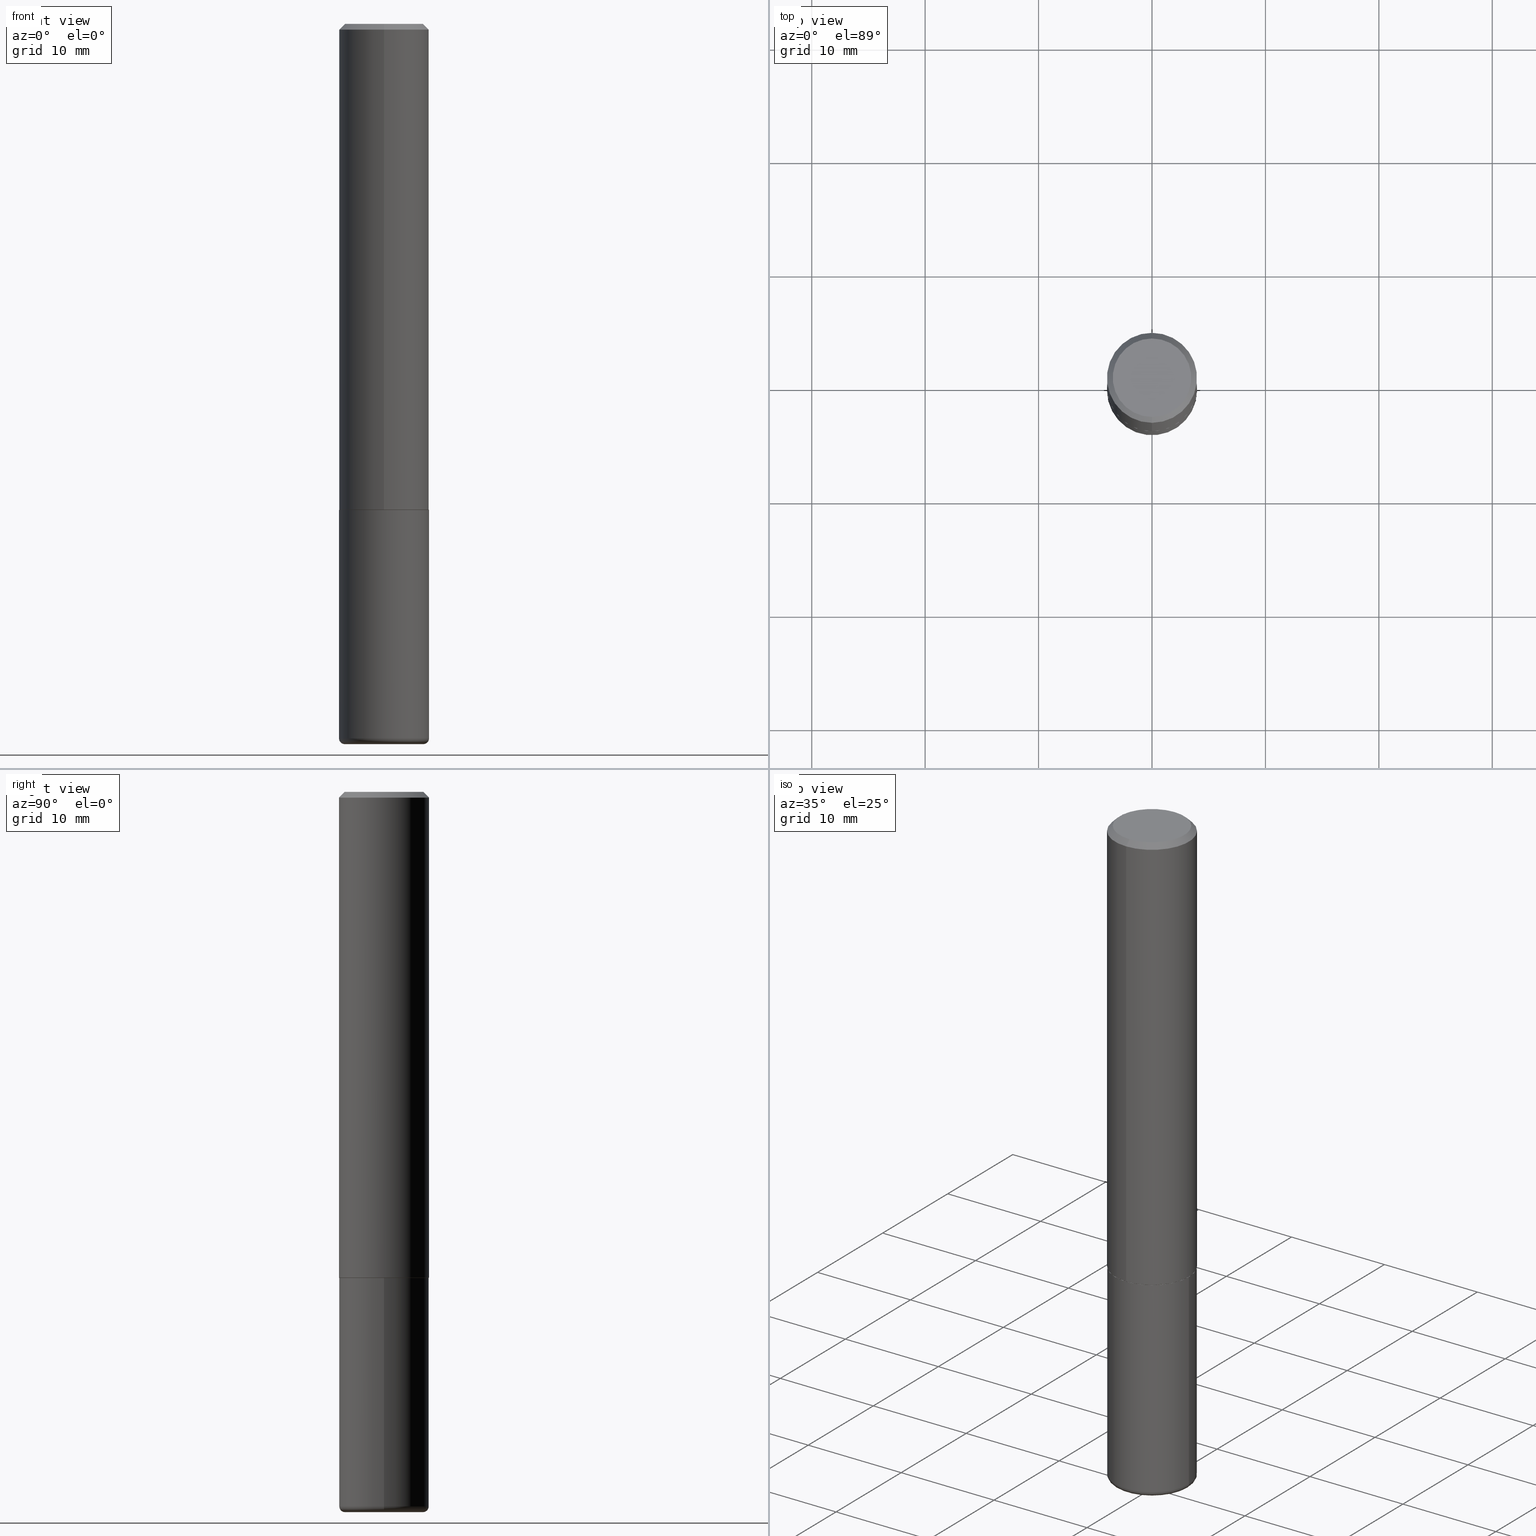
[diagram: canonical four-view strip — front | top / right | iso, engineering-drawing reading convention]
A machine part, canonical four-view strip (front | top / right | iso — engineering-drawing reading convention). The complete STEP part file that produces these views, byte-faithful:
ISO-10303-21;
HEADER;
FILE_DESCRIPTION (( 'STEP AP203' ),
    '1' );
FILE_NAME ('33348.STEP',
    '2024-03-01T13:23:41',
    ( '' ),
    ( '' ),
    'SwSTEP 2.0',
    'SolidWorks 2023',
    '' );
FILE_SCHEMA (( 'CONFIG_CONTROL_DESIGN' ));
ENDSEC;

DATA;
#1 = VERTEX_POINT ( 'NONE', #77 ) ;
#2 = DIRECTION ( 'NONE',  ( -2.445245379879280031E-29, 3.491801298029767650E-15, 1.000000000000000000 ) ) ;
#3 = CARTESIAN_POINT ( 'NONE',  ( 2.086446098065139374E-45, -2.979437259524717068E-31, -8.532665536283094915E-17 ) ) ;
#4 = ORIENTED_EDGE ( 'NONE', *, *, #380, .F. ) ;
#5 = EDGE_CURVE ( 'NONE', #334, #205, #336, .T. ) ;
#6 = COORDINATED_UNIVERSAL_TIME_OFFSET ( 5, 0, .BEHIND. ) ;
#7 = AXIS2_PLACEMENT_3D ( 'NONE', #246, #51, #118 ) ;
#8 = CALENDAR_DATE ( 2024, 1, 3 ) ;
#9 = CC_DESIGN_DATE_AND_TIME_ASSIGNMENT ( #54, #131, ( #63 ) ) ;
#10 =( NAMED_UNIT ( * ) SI_UNIT ( $, .STERADIAN. ) SOLID_ANGLE_UNIT ( ) );
#11 = ORIENTED_EDGE ( 'NONE', *, *, #135, .F. ) ;
#12 = EDGE_CURVE ( 'NONE', #139, #205, #24, .T. ) ;
#13 = DIRECTION ( 'NONE',  ( -2.445245379879280031E-29, 3.491801298029767650E-15, 1.000000000000000000 ) ) ;
#14 = VERTEX_POINT ( 'NONE', #233 ) ;
#15 = EDGE_CURVE ( 'NONE', #205, #14, #387, .T. ) ;
#16 = FACE_OUTER_BOUND ( 'NONE', #206, .T. ) ;
#17 = CIRCLE ( 'NONE', #412, 0.1562500000000000000 ) ;
#18 = CARTESIAN_POINT ( 'NONE',  ( 2.086446098065139374E-45, -2.979437259524717068E-31, -8.532665536283094915E-17 ) ) ;
#19 = VERTEX_POINT ( 'NONE', #76 ) ;
#20 = DIRECTION ( 'NONE',  ( -2.445468806185136597E-29, 3.491481338843145583E-15, 1.000000000000000000 ) ) ;
#21 = ORIENTED_EDGE ( 'NONE', *, *, #15, .T. ) ;
#22 = AXIS2_PLACEMENT_3D ( 'NONE', #187, #286, #191 ) ;
#23 = SHAPE_DEFINITION_REPRESENTATION ( #262, #157 ) ;
#24 = LINE ( 'NONE', #276, #351 ) ;
#25 = CLOSED_SHELL ( 'NONE', ( #410, #85, #66, #80, #151, #170, #295, #300 ) ) ;
#26 = DIRECTION ( 'NONE',  ( -2.445468806185136597E-29, 3.491481338843145583E-15, 1.000000000000000000 ) ) ;
#27 = FACE_OUTER_BOUND ( 'NONE', #186, .T. ) ;
#28 = APPROVAL ( #392, 'UNSPECIFIED' ) ;
#29 = EDGE_CURVE ( 'NONE', #221, #14, #71, .T. ) ;
#30 = PLANE ( 'NONE',  #366 ) ;
#31 = CONICAL_SURFACE ( 'NONE', #416, 0.1562500000000000278, 0.7853981633974472798 ) ;
#32 = DIRECTION ( 'NONE',  ( 1.000000000000000000, -6.982962677686273021E-15, 0.000000000000000000 ) ) ;
#33 = CC_DESIGN_APPROVAL ( #28, ( #123 ) ) ;
#34 = DATE_AND_TIME ( #8, #182 ) ;
#35 = ORIENTED_EDGE ( 'NONE', *, *, #224, .T. ) ;
#36 = ORIENTED_EDGE ( 'NONE', *, *, #172, .F. ) ;
#37 = CARTESIAN_POINT ( 'NONE',  ( 4.890490759758567699E-31, -6.983602596059547330E-17, -0.02000000000000003511 ) ) ;
#38 = ORIENTED_EDGE ( 'NONE', *, *, #12, .F. ) ;
#39 = DIRECTION ( 'NONE',  ( 2.438088387897960049E-29, -3.491481338843145188E-15, -1.000000000000000000 ) ) ;
#40 = CYLINDRICAL_SURFACE ( 'NONE', #208, 0.1562500000000001388 ) ;
#41 = CARTESIAN_POINT ( 'NONE',  ( -1.071952812151801412E-15, -0.1562500000000001110, -0.01999999999999948694 ) ) ;
#42 = EDGE_CURVE ( 'NONE', #14, #221, #47, .T. ) ;
#43 = COORDINATED_UNIVERSAL_TIME_OFFSET ( 5, 0, .BEHIND. ) ;
#44 = LINE ( 'NONE', #110, #398 ) ;
#45 = CIRCLE ( 'NONE', #55, 0.01999999999999988939 ) ;
#46 = CC_DESIGN_APPROVAL ( #231, ( #63 ) ) ;
#47 = CIRCLE ( 'NONE', #289, 0.1562500000000000278 ) ;
#48 = ORIENTED_EDGE ( 'NONE', *, *, #222, .F. ) ;
#49 = DIRECTION ( 'NONE',  ( -6.982962677686265922E-15, -1.000000000000000000, 3.519288880726909138E-15 ) ) ;
#50 = DIRECTION ( 'NONE',  ( 6.982962677686266711E-15, 1.000000000000000000, -3.496765431890256131E-15 ) ) ;
#51 = DIRECTION ( 'NONE',  ( -2.445468806185136597E-29, 3.491481338843145583E-15, 1.000000000000000000 ) ) ;
#52 = DIRECTION ( 'NONE',  ( 2.445245379879280031E-29, -3.491801298029767256E-15, -1.000000000000000000 ) ) ;
#53 = AXIS2_PLACEMENT_3D ( 'NONE', #180, #116, #324 ) ;
#54 = DATE_AND_TIME ( #92, #301 ) ;
#55 = AXIS2_PLACEMENT_3D ( 'NONE', #395, #119, #363 ) ;
#56 = CARTESIAN_POINT ( 'NONE',  ( 0.1562500000000000000, -1.091087918388479174E-15, 7.619026212181150377E-30 ) ) ;
#57 = CARTESIAN_POINT ( 'NONE',  ( 1.110223024625178431E-15, 0.1562499999999943379, -1.686000000000000831 ) ) ;
#58 = CARTESIAN_POINT ( 'NONE',  ( 4.125128955856346519E-29, -5.890668789776220031E-15, -1.687000000000000277 ) ) ;
#59 = PERSON ( 'UNSPECIFIED', 'UNSPECIFIED', 'UNSPECIFIED', ('UNSPECIFIED'), ('UNSPECIFIED'), ('UNSPECIFIED') ) ;
#60 = CARTESIAN_POINT ( 'NONE',  ( 6.064762639339139522E-29, -8.658873720331001644E-15, -2.480000000000000426 ) ) ;
#61 = PERSON_AND_ORGANIZATION ( #59, #138 ) ;
#62 = EDGE_LOOP ( 'NONE', ( #38, #94, #35, #185 ) ) ;
#63 = SECURITY_CLASSIFICATION ( '', '', #97 ) ;
#64 = ORIENTED_EDGE ( 'NONE', *, *, #108, .F. ) ;
#65 = CLOSED_SHELL ( 'NONE', ( #225, #319, #376, #385, #360, #73 ) ) ;
#66 = ADVANCED_FACE ( 'NONE', ( #256 ), #302, .T. ) ;
#67 = ORIENTED_EDGE ( 'NONE', *, *, #100, .F. ) ;
#68 = APPROVAL_ROLE ( '' ) ;
#69 = AXIS2_PLACEMENT_3D ( 'NONE', #369, #39, #335 ) ;
#70 = ORIENTED_EDGE ( 'NONE', *, *, #253, .T. ) ;
#71 = CIRCLE ( 'NONE', #183, 0.1562500000000000278 ) ;
#72 = CYLINDRICAL_SURFACE ( 'NONE', #95, 0.1562500000000000000 ) ;
#73 = ADVANCED_FACE ( 'NONE', ( #282 ), #406, .T. ) ;
#74 = DIRECTION ( 'NONE',  ( 0.000000000000000000, 0.000000000000000000, 1.000000000000000000 ) ) ;
#75 = EDGE_LOOP ( 'NONE', ( #328, #198, #306, #36 ) ) ;
#76 = CARTESIAN_POINT ( 'NONE',  ( 0.1562500000000000000, -6.981216937016868084E-15, -1.687000000000000277 ) ) ;
#77 = CARTESIAN_POINT ( 'NONE',  ( -1.003347832174086672E-15, -0.1362500000000001210, 3.904312714937253645E-16 ) ) ;
#78 = CARTESIAN_POINT ( 'NONE',  ( 0.000000000000000000, 0.000000000000000000, 0.000000000000000000 ) ) ;
#79 = VECTOR ( 'NONE', #177, 39.37007874015748143 ) ;
#80 = ADVANCED_FACE ( 'NONE', ( #248 ), #31, .T. ) ;
#81 =( NAMED_UNIT ( * ) PLANE_ANGLE_UNIT ( ) SI_UNIT ( $, .RADIAN. ) );
#82 = LINE ( 'NONE', #228, #79 ) ;
#83 = ORIENTED_EDGE ( 'NONE', *, *, #162, .F. ) ;
#84 = CC_DESIGN_SECURITY_CLASSIFICATION ( #63, ( #314 ) ) ;
#85 = ADVANCED_FACE ( 'NONE', ( #16 ), #378, .T. ) ;
#86 = ORIENTED_EDGE ( 'NONE', *, *, #172, .T. ) ;
#87 = DIRECTION ( 'NONE',  ( 2.438088387897960049E-29, -3.491481338843145188E-15, -1.000000000000000000 ) ) ;
#88 = VERTEX_POINT ( 'NONE', #273 ) ;
#89 = CARTESIAN_POINT ( 'NONE',  ( -0.1362500000000000100, -7.654619782670286835E-15, -2.500000000000000000 ) ) ;
#90 = FACE_OUTER_BOUND ( 'NONE', #281, .T. ) ;
#91 = CC_DESIGN_DATE_AND_TIME_ASSIGNMENT ( #327, #179, ( #123 ) ) ;
#92 = CALENDAR_DATE ( 2024, 1, 3 ) ;
#93 = CARTESIAN_POINT ( 'NONE',  ( -1.091087918388439336E-15, -0.1562500000000060785, -1.685999999999999721 ) ) ;
#94 = ORIENTED_EDGE ( 'NONE', *, *, #100, .T. ) ;
#95 = AXIS2_PLACEMENT_3D ( 'NONE', #104, #145, #245 ) ;
#96 = CIRCLE ( 'NONE', #105, 0.01999999999999988939 ) ;
#97 = SECURITY_CLASSIFICATION_LEVEL ( 'unclassified' ) ;
#98 = ORIENTED_EDGE ( 'NONE', *, *, #178, .F. ) ;
#99 = EDGE_LOOP ( 'NONE', ( #408, #234, #381, #107 ) ) ;
#100 = EDGE_CURVE ( 'NONE', #139, #201, #146, .T. ) ;
#101 = VERTEX_POINT ( 'NONE', #278 ) ;
#102 = CARTESIAN_POINT ( 'NONE',  ( -0.1562500000000000000, 1.110223024625156540E-15, -7.685836078523291160E-30 ) ) ;
#103 = PLANE ( 'NONE',  #298 ) ;
#104 = CARTESIAN_POINT ( 'NONE',  ( 0.000000000000000000, 0.000000000000000000, 0.000000000000000000 ) ) ;
#105 = AXIS2_PLACEMENT_3D ( 'NONE', #269, #232, #404 ) ;
#106 = APPROVAL_DATE_TIME ( #34, #28 ) ;
#107 = ORIENTED_EDGE ( 'NONE', *, *, #224, .F. ) ;
#108 = EDGE_CURVE ( 'NONE', #1, #221, #403, .T. ) ;
#109 = ORIENTED_EDGE ( 'NONE', *, *, #42, .T. ) ;
#110 = CARTESIAN_POINT ( 'NONE',  ( -1.084104955710751547E-15, -0.1552500000000059110, -1.686999999999999611 ) ) ;
#111 = AXIS2_PLACEMENT_3D ( 'NONE', #3, #296, #341 ) ;
#112 = FACE_OUTER_BOUND ( 'NONE', #159, .T. ) ;
#113 = ORIENTED_EDGE ( 'NONE', *, *, #108, .T. ) ;
#114 = CIRCLE ( 'NONE', #346, 0.1362500000000001210 ) ;
#115 = FACE_OUTER_BOUND ( 'NONE', #227, .T. ) ;
#116 = DIRECTION ( 'NONE',  ( -2.445245379879280031E-29, 3.491801298029767650E-15, 1.000000000000000000 ) ) ;
#117 = ORIENTED_EDGE ( 'NONE', *, *, #42, .F. ) ;
#118 = DIRECTION ( 'NONE',  ( 1.000000000000000000, -6.982962677686269077E-15, 0.000000000000000000 ) ) ;
#119 = DIRECTION ( 'NONE',  ( 7.105427357601001859E-15, 1.000000000000000000, -3.491481338843145583E-15 ) ) ;
#120 = DIRECTION ( 'NONE',  ( -1.000000000000000000, 6.982962677686265922E-15, -4.876176775795935793E-29 ) ) ;
#121 = PERSON_AND_ORGANIZATION_ROLE ( 'design_owner' ) ;
#122 = DIRECTION ( 'NONE',  ( -4.851104656540958753E-15, -0.7071067811865492381, -0.7071067811865457964 ) ) ;
#123 = PRODUCT_DEFINITION ( 'UNKNOWN', '', #314, #215 ) ;
#124 = DIRECTION ( 'NONE',  ( -2.445245379879280031E-29, 3.491801298029767650E-15, 1.000000000000000000 ) ) ;
#125 = MANIFOLD_SOLID_BREP ( 'Body-Move/Copy2[2]', #25 ) ;
#126 = ORIENTED_EDGE ( 'NONE', *, *, #267, .F. ) ;
#127 = VERTEX_POINT ( 'NONE', #89 ) ;
#128 = CARTESIAN_POINT ( 'NONE',  ( 6.113672015462842613E-29, -8.728703347107864943E-15, -2.500000000000000000 ) ) ;
#129 = CARTESIAN_POINT ( 'NONE',  ( 6.113672015462842613E-29, -8.728703347107864943E-15, -2.500000000000000000 ) ) ;
#130 = AXIS2_PLACEMENT_3D ( 'NONE', #271, #204, #247 ) ;
#131 = DATE_TIME_ROLE ( 'classification_date' ) ;
#132 = PRODUCT_RELATED_PRODUCT_CATEGORY ( 'detail', '', ( #371 ) ) ;
#133 = VECTOR ( 'NONE', #409, 39.37007874015748143 ) ;
#134 = AXIS2_PLACEMENT_3D ( 'NONE', #259, #322, #353 ) ;
#135 = EDGE_CURVE ( 'NONE', #19, #101, #307, .T. ) ;
#136 = FACE_OUTER_BOUND ( 'NONE', #99, .T. ) ;
#137 = DIRECTION ( 'NONE',  ( -2.445245379879280031E-29, 3.491801298029767650E-15, 1.000000000000000000 ) ) ;
#138 = ORGANIZATION ( 'UNSPECIFIED', 'UNSPECIFIED', '' ) ;
#139 = VERTEX_POINT ( 'NONE', #188 ) ;
#140 = APPLICATION_CONTEXT ( 'configuration controlled 3d designs of mechanical parts and assemblies' ) ;
#141 = EDGE_LOOP ( 'NONE', ( #275, #265 ) ) ;
#142 = DIRECTION ( 'NONE',  ( -6.982962677686265922E-15, -1.000000000000000000, 3.496765431890251792E-15 ) ) ;
#143 = ORIENTED_EDGE ( 'NONE', *, *, #270, .F. ) ;
#144 = CC_DESIGN_PERSON_AND_ORGANIZATION_ASSIGNMENT ( #61, #377, ( #314 ) ) ;
#145 = DIRECTION ( 'NONE',  ( -2.445468806185136597E-29, 3.491481338843145583E-15, 1.000000000000000000 ) ) ;
#146 = CIRCLE ( 'NONE', #189, 0.1552499999999999991 ) ;
#147 = DIRECTION ( 'NONE',  ( -2.445245379879280031E-29, 3.491801298029767650E-15, 1.000000000000000000 ) ) ;
#148 = DIRECTION ( 'NONE',  ( 5.024295867789091064E-15, 0.7071067811866947883, 0.7071067811864001351 ) ) ;
#149 = PERSON_AND_ORGANIZATION ( #59, #138 ) ;
#150 = DIMENSIONAL_EXPONENTS ( 1.000000000000000000, 0.000000000000000000, 0.000000000000000000, 0.000000000000000000, 0.000000000000000000, 0.000000000000000000, 0.000000000000000000 ) ;
#151 = ADVANCED_FACE ( 'NONE', ( #184 ), #40, .T. ) ;
#152 = CARTESIAN_POINT ( 'NONE',  ( 4.890490759758567699E-31, -6.983602596059547330E-17, -0.02000000000000003511 ) ) ;
#153 = CIRCLE ( 'NONE', #163, 0.1362500000000000100 ) ;
#154 = DIRECTION ( 'NONE',  ( -6.982962677686267499E-15, -1.000000000000000000, 3.491801298029767650E-15 ) ) ;
#155 = DIRECTION ( 'NONE',  ( 6.982962677686265922E-15, 1.000000000000000000, -3.491801298029767256E-15 ) ) ;
#156 = EDGE_CURVE ( 'NONE', #88, #14, #82, .T. ) ;
#157 = ADVANCED_BREP_SHAPE_REPRESENTATION ( '33348', ( #390, #125, #372 ), #251 ) ;
#158 = PERSON_AND_ORGANIZATION_ROLE ( 'creator' ) ;
#159 = EDGE_LOOP ( 'NONE', ( #70, #176, #11, #83 ) ) ;
#160 = CIRCLE ( 'NONE', #393, 0.1362500000000000100 ) ;
#161 = DIRECTION ( 'NONE',  ( -2.445245379879280031E-29, 3.491801298029767256E-15, 1.000000000000000000 ) ) ;
#162 = EDGE_CURVE ( 'NONE', #250, #19, #344, .T. ) ;
#163 = AXIS2_PLACEMENT_3D ( 'NONE', #129, #266, #32 ) ;
#164 = DIRECTION ( 'NONE',  ( -6.982962677686265922E-15, -1.000000000000000000, 3.491801298029767256E-15 ) ) ;
#165 = TOROIDAL_SURFACE ( 'NONE', #400, 0.1362500000000000100, 0.01999999999999988939 ) ;
#166 = CARTESIAN_POINT ( 'NONE',  ( 0.000000000000000000, 0.000000000000000000, 0.000000000000000000 ) ) ;
#167 = APPLICATION_CONTEXT ( 'configuration controlled 3d designs of mechanical parts and assemblies' ) ;
#168 = PERSON_AND_ORGANIZATION ( #59, #138 ) ;
#169 = ORIENTED_EDGE ( 'NONE', *, *, #29, .T. ) ;
#170 = ADVANCED_FACE ( 'NONE', ( #294 ), #312, .T. ) ;
#171 = AXIS2_PLACEMENT_3D ( 'NONE', #311, #87, #120 ) ;
#172 = EDGE_CURVE ( 'NONE', #223, #250, #17, .T. ) ;
#173 = ORIENTED_EDGE ( 'NONE', *, *, #135, .T. ) ;
#174 = ORIENTED_EDGE ( 'NONE', *, *, #310, .T. ) ;
#175 = DIRECTION ( 'NONE',  ( 1.000000000000000000, -6.982962677686266711E-15, 4.876176775795936353E-29 ) ) ;
#176 = ORIENTED_EDGE ( 'NONE', *, *, #267, .T. ) ;
#177 = DIRECTION ( 'NONE',  ( 4.937700262164542520E-15, 0.7071067811865443531, -0.7071067811865506814 ) ) ;
#178 = EDGE_CURVE ( 'NONE', #362, #250, #96, .T. ) ;
#179 = DATE_TIME_ROLE ( 'creation_date' ) ;
#180 = CARTESIAN_POINT ( 'NONE',  ( 4.122683710476466546E-29, -5.887176988478189589E-15, -1.686000000000000165 ) ) ;
#181 = VECTOR ( 'NONE', #394, 39.37007874015748143 ) ;
#182 = LOCAL_TIME ( 8, 23, 41.00000000000000000, #6 ) ;
#183 = AXIS2_PLACEMENT_3D ( 'NONE', #37, #218, #347 ) ;
#184 = FACE_OUTER_BOUND ( 'NONE', #402, .T. ) ;
#185 = ORIENTED_EDGE ( 'NONE', *, *, #361, .F. ) ;
#186 = EDGE_LOOP ( 'NONE', ( #4, #67 ) ) ;
#187 = CARTESIAN_POINT ( 'NONE',  ( 4.890490759758567699E-31, -6.983602596059547330E-17, -0.02000000000000003511 ) ) ;
#188 = CARTESIAN_POINT ( 'NONE',  ( 1.106670310946397649E-15, 0.1552499999999940872, -1.687000000000000499 ) ) ;
#189 = AXIS2_PLACEMENT_3D ( 'NONE', #292, #124, #49 ) ;
#190 = CARTESIAN_POINT ( 'NONE',  ( 0.000000000000000000, 0.000000000000000000, 0.000000000000000000 ) ) ;
#191 = DIRECTION ( 'NONE',  ( 6.982962677686266711E-15, 1.000000000000000000, -3.496765431890256131E-15 ) ) ;
#192 = COORDINATED_UNIVERSAL_TIME_OFFSET ( 5, 0, .BEHIND. ) ;
#193 = EDGE_CURVE ( 'NONE', #127, #223, #45, .T. ) ;
#194 = LOCAL_TIME ( 8, 23, 41.00000000000000000, #280 ) ;
#195 = CC_DESIGN_PERSON_AND_ORGANIZATION_ASSIGNMENT ( #149, #121, ( #371 ) ) ;
#196 = DIRECTION ( 'NONE',  ( -2.445245379879280031E-29, 3.491801298029767650E-15, 1.000000000000000000 ) ) ;
#197 = CARTESIAN_POINT ( 'NONE',  ( 6.064762639339139522E-29, -8.658873720331001644E-15, -2.480000000000000426 ) ) ;
#198 = ORIENTED_EDGE ( 'NONE', *, *, #304, .T. ) ;
#199 = MECHANICAL_CONTEXT ( 'NONE', #167, 'mechanical' ) ;
#200 = APPROVAL_PERSON_ORGANIZATION ( #287, #231, #340 ) ;
#201 = VERTEX_POINT ( 'NONE', #370 ) ;
#202 = APPLICATION_PROTOCOL_DEFINITION ( 'international standard', 'config_control_design', 1994, #140 ) ;
#203 = CC_DESIGN_PERSON_AND_ORGANIZATION_ASSIGNMENT ( #261, #158, ( #314 ) ) ;
#204 = DIRECTION ( 'NONE',  ( -2.445245379879280031E-29, 3.491801298029767650E-15, 1.000000000000000000 ) ) ;
#205 = VERTEX_POINT ( 'NONE', #57 ) ;
#206 = EDGE_LOOP ( 'NONE', ( #330, #21, #220, #48 ) ) ;
#207 = ORIENTED_EDGE ( 'NONE', *, *, #156, .T. ) ;
#208 = AXIS2_PLACEMENT_3D ( 'NONE', #285, #13, #252 ) ;
#209 = LOCAL_TIME ( 8, 23, 41.00000000000000000, #43 ) ;
#210 = EDGE_LOOP ( 'NONE', ( #173, #373 ) ) ;
#211 = VECTOR ( 'NONE', #413, 39.37007874015748143 ) ;
#212 = DIRECTION ( 'NONE',  ( -2.445468806185136597E-29, 3.491481338843145583E-15, 1.000000000000000000 ) ) ;
#213 = ORIENTED_EDGE ( 'NONE', *, *, #222, .T. ) ;
#214 = EDGE_CURVE ( 'NONE', #362, #127, #153, .T. ) ;
#215 = DESIGN_CONTEXT ( 'detailed design', #140, 'design' ) ;
#216 = PERSON_AND_ORGANIZATION ( #59, #138 ) ;
#217 = CARTESIAN_POINT ( 'NONE',  ( -1.091087918388479962E-15, -0.1562500000000001388, 5.455939528171517007E-16 ) ) ;
#218 = DIRECTION ( 'NONE',  ( -2.445245379879280031E-29, 3.491801298029767650E-15, 1.000000000000000000 ) ) ;
#219 = CALENDAR_DATE ( 2024, 1, 3 ) ;
#220 = ORIENTED_EDGE ( 'NONE', *, *, #29, .F. ) ;
#221 = VERTEX_POINT ( 'NONE', #41 ) ;
#222 = EDGE_CURVE ( 'NONE', #334, #221, #274, .T. ) ;
#223 = VERTEX_POINT ( 'NONE', #333 ) ;
#224 = EDGE_CURVE ( 'NONE', #201, #334, #44, .T. ) ;
#225 = ADVANCED_FACE ( 'NONE', ( #112 ), #364, .T. ) ;
#226 = CARTESIAN_POINT ( 'NONE',  ( 9.514286648347547465E-16, 0.1362500000000001210, -5.184212545379717821E-16 ) ) ;
#227 = EDGE_LOOP ( 'NONE', ( #126, #86, #355, #143 ) ) ;
#228 = CARTESIAN_POINT ( 'NONE',  ( 1.091087918388479765E-15, 0.1562499999999999722, -0.02000000000000057981 ) ) ;
#229 = AXIS2_PLACEMENT_3D ( 'NONE', #284, #405, #397 ) ;
#230 = DIRECTION ( 'NONE',  ( -6.982962677686265922E-15, -1.000000000000000000, 3.519288880726909138E-15 ) ) ;
#231 = APPROVAL ( #288, 'UNSPECIFIED' ) ;
#232 = DIRECTION ( 'NONE',  ( -6.982962677686266711E-15, -1.000000000000000000, 3.491481338843145583E-15 ) ) ;
#233 = CARTESIAN_POINT ( 'NONE',  ( 1.091087918388479765E-15, 0.1562499999999999722, -0.02000000000000057981 ) ) ;
#234 = ORIENTED_EDGE ( 'NONE', *, *, #12, .T. ) ;
#235 = CIRCLE ( 'NONE', #111, 0.1362500000000001210 ) ;
#236 = DIRECTION ( 'NONE',  ( 1.000000000000000000, 0.000000000000000000, 0.000000000000000000 ) ) ;
#237 = ORIENTED_EDGE ( 'NONE', *, *, #214, .T. ) ;
#238 = DIRECTION ( 'NONE',  ( -4.937700262165559362E-15, -0.7071067811866899033, 0.7071067811864050201 ) ) ;
#239 = TOROIDAL_SURFACE ( 'NONE', #229, 0.1362500000000000100, 0.01999999999999988939 ) ;
#240 = LOCAL_TIME ( 8, 23, 41.00000000000000000, #192 ) ;
#241 = EDGE_CURVE ( 'NONE', #1, #88, #235, .T. ) ;
#242 = ORIENTED_EDGE ( 'NONE', *, *, #241, .F. ) ;
#243 = CIRCLE ( 'NONE', #134, 0.1562500000000000000 ) ;
#244 = ORIENTED_EDGE ( 'NONE', *, *, #361, .T. ) ;
#245 = DIRECTION ( 'NONE',  ( 1.000000000000000000, -6.982962677686266711E-15, 4.876176775795936353E-29 ) ) ;
#246 = CARTESIAN_POINT ( 'NONE',  ( 4.125505876034326327E-29, -5.890129018628388122E-15, -1.687000000000000277 ) ) ;
#247 = DIRECTION ( 'NONE',  ( -6.982962677686265922E-15, -1.000000000000000000, 3.519288880726909138E-15 ) ) ;
#248 = FACE_OUTER_BOUND ( 'NONE', #331, .T. ) ;
#249 =( CONVERSION_BASED_UNIT ( 'INCH', #323 ) LENGTH_UNIT ( ) NAMED_UNIT ( #150 ) );
#250 = VERTEX_POINT ( 'NONE', #345 ) ;
#251 =( GEOMETRIC_REPRESENTATION_CONTEXT ( 3 ) GLOBAL_UNCERTAINTY_ASSIGNED_CONTEXT ( ( #308 ) ) GLOBAL_UNIT_ASSIGNED_CONTEXT ( ( #249, #81, #10 ) ) REPRESENTATION_CONTEXT ( 'NONE', 'WORKASPACE' ) );
#252 = DIRECTION ( 'NONE',  ( -6.982962677686265922E-15, -1.000000000000000000, 3.491801298029767650E-15 ) ) ;
#253 = EDGE_CURVE ( 'NONE', #250, #223, #325, .T. ) ;
#254 = APPROVAL_DATE_TIME ( #343, #329 ) ;
#255 = CARTESIAN_POINT ( 'NONE',  ( -1.071952812151801412E-15, -0.1562500000000001110, -0.01999999999999948694 ) ) ;
#256 = FACE_OUTER_BOUND ( 'NONE', #272, .T. ) ;
#257 = DIRECTION ( 'NONE',  ( -2.445468806185136597E-29, 3.491481338843145583E-15, 1.000000000000000000 ) ) ;
#258 = ORIENTED_EDGE ( 'NONE', *, *, #310, .F. ) ;
#259 = CARTESIAN_POINT ( 'NONE',  ( 4.125505876034326327E-29, -5.890129018628388122E-15, -1.687000000000000277 ) ) ;
#260 = DIRECTION ( 'NONE',  ( -6.982962677686266711E-15, -1.000000000000000000, 3.496765431890256131E-15 ) ) ;
#261 = PERSON_AND_ORGANIZATION ( #59, #138 ) ;
#262 = PRODUCT_DEFINITION_SHAPE ( 'NONE', 'NONE',  #123 ) ;
#263 = CONICAL_SURFACE ( 'NONE', #130, 0.1552499999999999991, 0.7853981633976532262 ) ;
#264 = VECTOR ( 'NONE', #359, 39.37007874015748143 ) ;
#265 = ORIENTED_EDGE ( 'NONE', *, *, #304, .F. ) ;
#266 = DIRECTION ( 'NONE',  ( -2.445468806185136597E-29, 3.491481338843145583E-15, 1.000000000000000000 ) ) ;
#267 = EDGE_CURVE ( 'NONE', #223, #101, #391, .T. ) ;
#268 = AXIS2_PLACEMENT_3D ( 'NONE', #197, #338, #316 ) ;
#269 = CARTESIAN_POINT ( 'NONE',  ( 0.1362500000000000100, -9.610302385165756588E-15, -2.480000000000000426 ) ) ;
#270 = EDGE_CURVE ( 'NONE', #101, #19, #243, .T. ) ;
#271 = CARTESIAN_POINT ( 'NONE',  ( 4.125128955856345959E-29, -5.890668789776219242E-15, -1.687000000000000055 ) ) ;
#272 = EDGE_LOOP ( 'NONE', ( #242, #113, #169, #367 ) ) ;
#273 = CARTESIAN_POINT ( 'NONE',  ( 1.021258291611617256E-15, 0.1362500000000001210, -5.610845822193871889E-16 ) ) ;
#274 = LINE ( 'NONE', #217, #181 ) ;
#275 = ORIENTED_EDGE ( 'NONE', *, *, #214, .F. ) ;
#276 = CARTESIAN_POINT ( 'NONE',  ( 1.103117597267596553E-15, 0.1552499999999940872, -1.687000000000000499 ) ) ;
#277 = ORIENTED_EDGE ( 'NONE', *, *, #15, .F. ) ;
#278 = CARTESIAN_POINT ( 'NONE',  ( -0.1562500000000000000, -6.164278344854539131E-15, -1.687000000000000277 ) ) ;
#279 = VECTOR ( 'NONE', #122, 39.37007874015748143 ) ;
#280 = COORDINATED_UNIVERSAL_TIME_OFFSET ( 5, 0, .BEHIND. ) ;
#281 = EDGE_LOOP ( 'NONE', ( #174, #399 ) ) ;
#282 = FACE_OUTER_BOUND ( 'NONE', #141, .T. ) ;
#283 = APPROVAL_STATUS ( 'not_yet_approved' ) ;
#284 = CARTESIAN_POINT ( 'NONE',  ( 6.064762639339139522E-29, -8.658873720331001644E-15, -2.480000000000000426 ) ) ;
#285 = CARTESIAN_POINT ( 'NONE',  ( 0.000000000000000000, 0.000000000000000000, 0.000000000000000000 ) ) ;
#286 = DIRECTION ( 'NONE',  ( 2.445245379879280031E-29, -3.491801298029767650E-15, -1.000000000000000000 ) ) ;
#287 = PERSON_AND_ORGANIZATION ( #59, #138 ) ;
#288 = APPROVAL_STATUS ( 'not_yet_approved' ) ;
#289 = AXIS2_PLACEMENT_3D ( 'NONE', #339, #147, #260 ) ;
#290 = DATE_AND_TIME ( #337, #240 ) ;
#291 = DIRECTION ( 'NONE',  ( -2.445245379879280031E-29, 3.491801298029767650E-15, 1.000000000000000000 ) ) ;
#292 = CARTESIAN_POINT ( 'NONE',  ( 4.125128955856345959E-29, -5.890668789776219242E-15, -1.687000000000000055 ) ) ;
#293 = DIRECTION ( 'NONE',  ( 1.000000000000000000, -6.982962677686273021E-15, 0.000000000000000000 ) ) ;
#294 = FACE_OUTER_BOUND ( 'NONE', #62, .T. ) ;
#295 = ADVANCED_FACE ( 'NONE', ( #27 ), #30, .F. ) ;
#296 = DIRECTION ( 'NONE',  ( -2.445245379879280031E-29, 3.491801298029767650E-15, 1.000000000000000000 ) ) ;
#297 = CIRCLE ( 'NONE', #342, 0.1552499999999999991 ) ;
#298 = AXIS2_PLACEMENT_3D ( 'NONE', #226, #52, #155 ) ;
#299 = DIRECTION ( 'NONE',  ( -6.982962677686265922E-15, -1.000000000000000000, 3.519288880726909138E-15 ) ) ;
#300 = ADVANCED_FACE ( 'NONE', ( #90 ), #103, .F. ) ;
#301 = LOCAL_TIME ( 8, 23, 41.00000000000000000, #313 ) ;
#302 = CONICAL_SURFACE ( 'NONE', #22, 0.1562500000000000278, 0.7853981633974472798 ) ;
#303 = DIRECTION ( 'NONE',  ( -6.982962677686265922E-15, -1.000000000000000000, 3.491801298029767650E-15 ) ) ;
#304 = EDGE_CURVE ( 'NONE', #127, #362, #160, .T. ) ;
#305 = CARTESIAN_POINT ( 'NONE',  ( 4.122683710476466546E-29, -5.887176988478189589E-15, -1.686000000000000165 ) ) ;
#306 = ORIENTED_EDGE ( 'NONE', *, *, #178, .T. ) ;
#307 = CIRCLE ( 'NONE', #7, 0.1562500000000000000 ) ;
#308 = UNCERTAINTY_MEASURE_WITH_UNIT (LENGTH_MEASURE( 1.000000000000000082E-05 ), #249, 'distance_accuracy_value', 'NONE');
#309 = APPROVAL_ROLE ( '' ) ;
#310 = EDGE_CURVE ( 'NONE', #88, #1, #114, .T. ) ;
#311 = CARTESIAN_POINT ( 'NONE',  ( 6.113672015462842613E-29, -8.728703347107864943E-15, -2.500000000000000000 ) ) ;
#312 = CONICAL_SURFACE ( 'NONE', #365, 0.1552499999999999991, 0.7853981633976532262 ) ;
#313 = COORDINATED_UNIVERSAL_TIME_OFFSET ( 5, 0, .BEHIND. ) ;
#314 = PRODUCT_DEFINITION_FORMATION_WITH_SPECIFIED_SOURCE ( 'ANY', '', #371, .NOT_KNOWN. ) ;
#315 = CC_DESIGN_PERSON_AND_ORGANIZATION_ASSIGNMENT ( #414, #411, ( #63 ) ) ;
#316 = DIRECTION ( 'NONE',  ( 1.000000000000000000, -6.982962677686262766E-15, 0.000000000000000000 ) ) ;
#317 = AXIS2_PLACEMENT_3D ( 'NONE', #78, #212, #175 ) ;
#318 = DIRECTION ( 'NONE',  ( -2.445245379879280031E-29, 3.491801298029767650E-15, 1.000000000000000000 ) ) ;
#319 = ADVANCED_FACE ( 'NONE', ( #384 ), #165, .T. ) ;
#320 = CARTESIAN_POINT ( 'NONE',  ( 6.064762639339139522E-29, -8.658873720331001644E-15, -2.480000000000000426 ) ) ;
#321 = EDGE_LOOP ( 'NONE', ( #237, #375, #396, #98 ) ) ;
#322 = DIRECTION ( 'NONE',  ( -2.445468806185136597E-29, 3.491481338843145583E-15, 1.000000000000000000 ) ) ;
#323 = LENGTH_MEASURE_WITH_UNIT ( LENGTH_MEASURE( 0.02539999999999999897 ), #368 );
#324 = DIRECTION ( 'NONE',  ( -6.982962677686265922E-15, -1.000000000000000000, 3.496765431890251792E-15 ) ) ;
#325 = CIRCLE ( 'NONE', #268, 0.1562500000000000000 ) ;
#326 = PERSON_AND_ORGANIZATION ( #59, #138 ) ;
#327 = DATE_AND_TIME ( #358, #209 ) ;
#328 = ORIENTED_EDGE ( 'NONE', *, *, #193, .F. ) ;
#329 = APPROVAL ( #283, 'UNSPECIFIED' ) ;
#330 = ORIENTED_EDGE ( 'NONE', *, *, #5, .T. ) ;
#331 = EDGE_LOOP ( 'NONE', ( #64, #258, #207, #109 ) ) ;
#332 = PERSON_AND_ORGANIZATION_ROLE ( 'creator' ) ;
#333 = CARTESIAN_POINT ( 'NONE',  ( -0.1562499999999999445, -7.548650695705845104E-15, -2.480000000000000426 ) ) ;
#334 = VERTEX_POINT ( 'NONE', #93 ) ;
#335 = DIRECTION ( 'NONE',  ( -1.000000000000000000, 6.982962677686265922E-15, -4.876176775795935793E-29 ) ) ;
#336 = CIRCLE ( 'NONE', #357, 0.1562500000000002220 ) ;
#337 = CALENDAR_DATE ( 2024, 1, 3 ) ;
#338 = DIRECTION ( 'NONE',  ( -2.445468806185136597E-29, 3.491481338843145583E-15, 1.000000000000000000 ) ) ;
#339 = CARTESIAN_POINT ( 'NONE',  ( 4.890490759758567699E-31, -6.983602596059547330E-17, -0.02000000000000003511 ) ) ;
#340 = APPROVAL_ROLE ( '' ) ;
#341 = DIRECTION ( 'NONE',  ( -6.982962677686267499E-15, -1.000000000000000000, 3.491801298029767650E-15 ) ) ;
#342 = AXIS2_PLACEMENT_3D ( 'NONE', #401, #137, #299 ) ;
#343 = DATE_AND_TIME ( #219, #194 ) ;
#344 = LINE ( 'NONE', #56, #211 ) ;
#345 = CARTESIAN_POINT ( 'NONE',  ( 0.1562499999999999445, -9.749961638719480029E-15, -2.480000000000000426 ) ) ;
#346 = AXIS2_PLACEMENT_3D ( 'NONE', #18, #291, #154 ) ;
#347 = DIRECTION ( 'NONE',  ( -6.982962677686266711E-15, -1.000000000000000000, 3.496765431890256131E-15 ) ) ;
#348 = APPROVAL_DATE_TIME ( #290, #231 ) ;
#349 = FACE_OUTER_BOUND ( 'NONE', #75, .T. ) ;
#350 = FACE_OUTER_BOUND ( 'NONE', #210, .T. ) ;
#351 = VECTOR ( 'NONE', #148, 39.37007874015748854 ) ;
#352 = CARTESIAN_POINT ( 'NONE',  ( 0.1362500000000000100, -9.680132011942619886E-15, -2.500000000000000000 ) ) ;
#353 = DIRECTION ( 'NONE',  ( 1.000000000000000000, -6.982962677686269077E-15, 0.000000000000000000 ) ) ;
#354 = CARTESIAN_POINT ( 'NONE',  ( 1.110223024625157329E-15, 0.1562500000000001388, -5.455939528171517007E-16 ) ) ;
#355 = ORIENTED_EDGE ( 'NONE', *, *, #162, .T. ) ;
#356 = CIRCLE ( 'NONE', #53, 0.1562500000000002220 ) ;
#357 = AXIS2_PLACEMENT_3D ( 'NONE', #305, #2, #142 ) ;
#358 = CALENDAR_DATE ( 2024, 1, 3 ) ;
#359 = DIRECTION ( 'NONE',  ( -2.445245379879280311E-29, 3.491801298029767256E-15, 1.000000000000000000 ) ) ;
#360 = ADVANCED_FACE ( 'NONE', ( #349 ), #239, .T. ) ;
#361 = EDGE_CURVE ( 'NONE', #205, #334, #356, .T. ) ;
#362 = VERTEX_POINT ( 'NONE', #352 ) ;
#363 = DIRECTION ( 'NONE',  ( -1.000000000000000000, 7.105427357601014480E-15, 0.000000000000000000 ) ) ;
#364 = CYLINDRICAL_SURFACE ( 'NONE', #317, 0.1562500000000000000 ) ;
#365 = AXIS2_PLACEMENT_3D ( 'NONE', #386, #196, #230 ) ;
#366 = AXIS2_PLACEMENT_3D ( 'NONE', #58, #161, #164 ) ;
#367 = ORIENTED_EDGE ( 'NONE', *, *, #156, .F. ) ;
#368 =( LENGTH_UNIT ( ) NAMED_UNIT ( * ) SI_UNIT ( $, .METRE. ) );
#369 = CARTESIAN_POINT ( 'NONE',  ( 4.125505876034326327E-29, -5.890129018628388122E-15, -1.687000000000000277 ) ) ;
#370 = CARTESIAN_POINT ( 'NONE',  ( -1.084104955710751547E-15, -0.1552500000000059110, -1.686999999999999611 ) ) ;
#371 = PRODUCT ( '33348', '33348', '', ( #199 ) ) ;
#372 = AXIS2_PLACEMENT_3D ( 'NONE', #166, #74, #236 ) ;
#373 = ORIENTED_EDGE ( 'NONE', *, *, #270, .T. ) ;
#374 = DIRECTION ( 'NONE',  ( 2.445245379879280031E-29, -3.491801298029767650E-15, -1.000000000000000000 ) ) ;
#375 = ORIENTED_EDGE ( 'NONE', *, *, #193, .T. ) ;
#376 = ADVANCED_FACE ( 'NONE', ( #350 ), #417, .F. ) ;
#377 = PERSON_AND_ORGANIZATION_ROLE ( 'design_supplier' ) ;
#378 = CYLINDRICAL_SURFACE ( 'NONE', #382, 0.1562500000000001388 ) ;
#379 = DIRECTION ( 'NONE',  ( 1.000000000000000000, -6.982962677686267499E-15, 4.883557194083112901E-29 ) ) ;
#380 = EDGE_CURVE ( 'NONE', #201, #139, #297, .T. ) ;
#381 = ORIENTED_EDGE ( 'NONE', *, *, #5, .F. ) ;
#382 = AXIS2_PLACEMENT_3D ( 'NONE', #190, #318, #303 ) ;
#383 = APPROVAL_PERSON_ORGANIZATION ( #326, #28, #68 ) ;
#384 = FACE_OUTER_BOUND ( 'NONE', #321, .T. ) ;
#385 = ADVANCED_FACE ( 'NONE', ( #115 ), #72, .T. ) ;
#386 = CARTESIAN_POINT ( 'NONE',  ( 4.125128955856345959E-29, -5.890668789776219242E-15, -1.687000000000000055 ) ) ;
#387 = LINE ( 'NONE', #354, #264 ) ;
#388 = APPROVAL_PERSON_ORGANIZATION ( #168, #329, #309 ) ;
#389 = CC_DESIGN_PERSON_AND_ORGANIZATION_ASSIGNMENT ( #216, #332, ( #123 ) ) ;
#390 = MANIFOLD_SOLID_BREP ( 'Body-Move/Copy2[1]', #65 ) ;
#391 = LINE ( 'NONE', #102, #133 ) ;
#392 = APPROVAL_STATUS ( 'not_yet_approved' ) ;
#393 = AXIS2_PLACEMENT_3D ( 'NONE', #128, #20, #293 ) ;
#394 = DIRECTION ( 'NONE',  ( -2.445245379879280311E-29, 3.491801298029767256E-15, 1.000000000000000000 ) ) ;
#395 = CARTESIAN_POINT ( 'NONE',  ( -0.1362500000000000100, -7.690759242857866845E-15, -2.480000000000000426 ) ) ;
#396 = ORIENTED_EDGE ( 'NONE', *, *, #253, .F. ) ;
#397 = DIRECTION ( 'NONE',  ( 1.000000000000000000, -6.982962677686267499E-15, 4.883557194083112901E-29 ) ) ;
#398 = VECTOR ( 'NONE', #238, 39.37007874015748854 ) ;
#399 = ORIENTED_EDGE ( 'NONE', *, *, #241, .T. ) ;
#400 = AXIS2_PLACEMENT_3D ( 'NONE', #60, #257, #379 ) ;
#401 = CARTESIAN_POINT ( 'NONE',  ( 4.125128955856345959E-29, -5.890668789776219242E-15, -1.687000000000000055 ) ) ;
#402 = EDGE_LOOP ( 'NONE', ( #277, #244, #213, #117 ) ) ;
#403 = LINE ( 'NONE', #255, #279 ) ;
#404 = DIRECTION ( 'NONE',  ( 1.000000000000000000, -6.982962677686274599E-15, 0.000000000000000000 ) ) ;
#405 = DIRECTION ( 'NONE',  ( -2.445468806185136597E-29, 3.491481338843145583E-15, 1.000000000000000000 ) ) ;
#406 = PLANE ( 'NONE',  #171 ) ;
#407 = APPLICATION_PROTOCOL_DEFINITION ( 'international standard', 'config_control_design', 1994, #167 ) ;
#408 = ORIENTED_EDGE ( 'NONE', *, *, #380, .T. ) ;
#409 = DIRECTION ( 'NONE',  ( -2.445468806185136877E-29, 3.491481338843145188E-15, 1.000000000000000000 ) ) ;
#410 = ADVANCED_FACE ( 'NONE', ( #136 ), #263, .T. ) ;
#411 = PERSON_AND_ORGANIZATION_ROLE ( 'classification_officer' ) ;
#412 = AXIS2_PLACEMENT_3D ( 'NONE', #320, #26, #415 ) ;
#413 = DIRECTION ( 'NONE',  ( -2.445468806185136877E-29, 3.491481338843145188E-15, 1.000000000000000000 ) ) ;
#414 = PERSON_AND_ORGANIZATION ( #59, #138 ) ;
#415 = DIRECTION ( 'NONE',  ( 1.000000000000000000, -6.982962677686262766E-15, 0.000000000000000000 ) ) ;
#416 = AXIS2_PLACEMENT_3D ( 'NONE', #152, #374, #50 ) ;
#417 = PLANE ( 'NONE',  #69 ) ;
#418 = CC_DESIGN_APPROVAL ( #329, ( #314 ) ) ;
ENDSEC;
END-ISO-10303-21;
